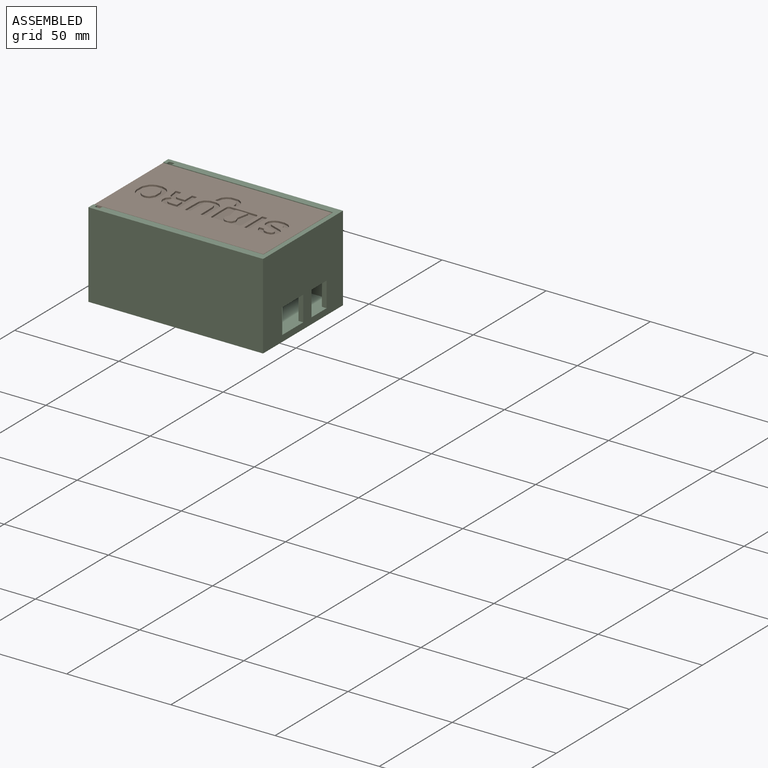
[diagram: assembled view]
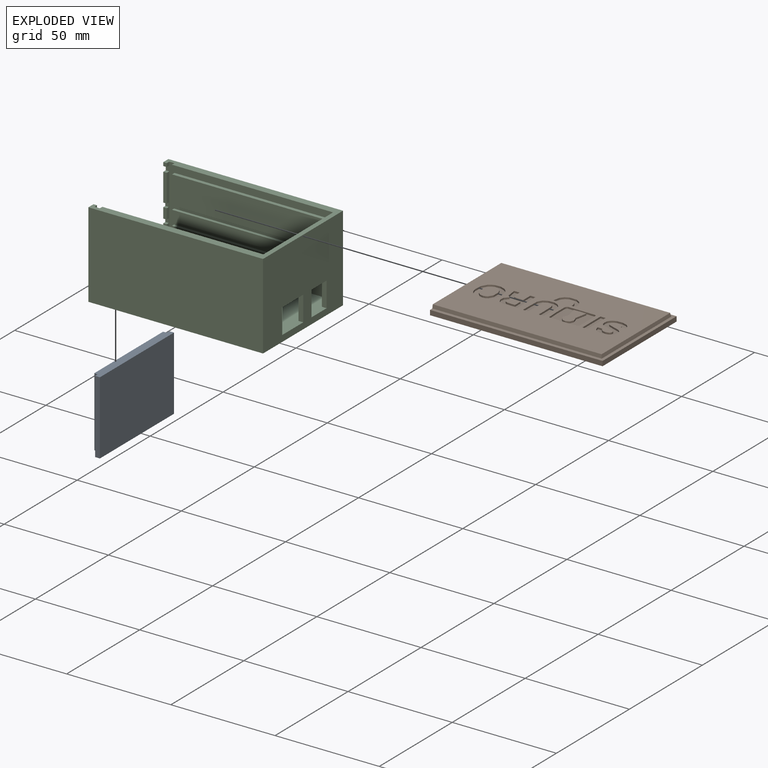
[diagram: exploded view]
GUIDED TOUR — MATED ASSEMBLY (Onshape document 5ca943f7dbe2b45de2e592c2, AutoMate assembly 5ca943f7dbe2b45de2e592c2_52b2e3cca65d3ede02709e09_ca88757c65d729c7c043e264_default)

This assembly has 3 components, labeled P0..P2 below (a component is one placed occurrence of a part; the same part can appear more than once), held together by 2 mates. A mate is a constraint between two components; its type names the relative motion it leaves free:
  SLIDER — leaves translation along the listed axis free.
Axis/direction vectors are unit vectors and 'through' points are millimeter coordinates, both in the assembly's world frame.

MATES
  1. SLIDER "Slider 2": P1 <-> P2, axis (1.000, 0.000, 0.000) through (76.69, -5.85, 149.50) mm
  2. SLIDER "Slider 1": P2 <-> P0, axis (0.000, 0.000, 1.000) through (-3.36, -5.85, 112.95) mm

ASSEMBLY ORDER
  1. P2 — the base component [order verified]
  2. P0 [order verified]
  3. P1 [order verified]
Order-tag legend:
  [order verified] — this step's position reverses a verified removal order: the component was checked to insert without passing through the ones already placed.

Of the 3 components, 1 carries the full construction recipe — the FeatureScript program that regenerates the part's solid from scratch; the rest are supplied as boundary geometry only.
Each toured component is shown spotlighted twice — in the assembled view, then in the exploded view, where a leader line traces a displaced component back to its assembled socket (saturated green if recipe-attached, orange if geometry-only; every other component desaturated gray) — followed by its recipe or geometry summary and the mates that hold it.
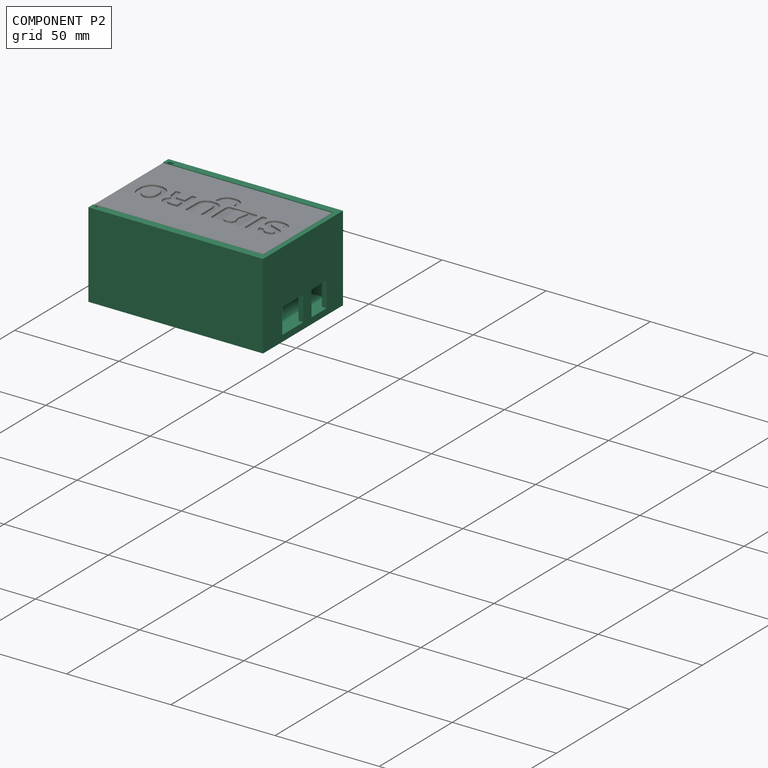
[diagram: component P2 — assembled]
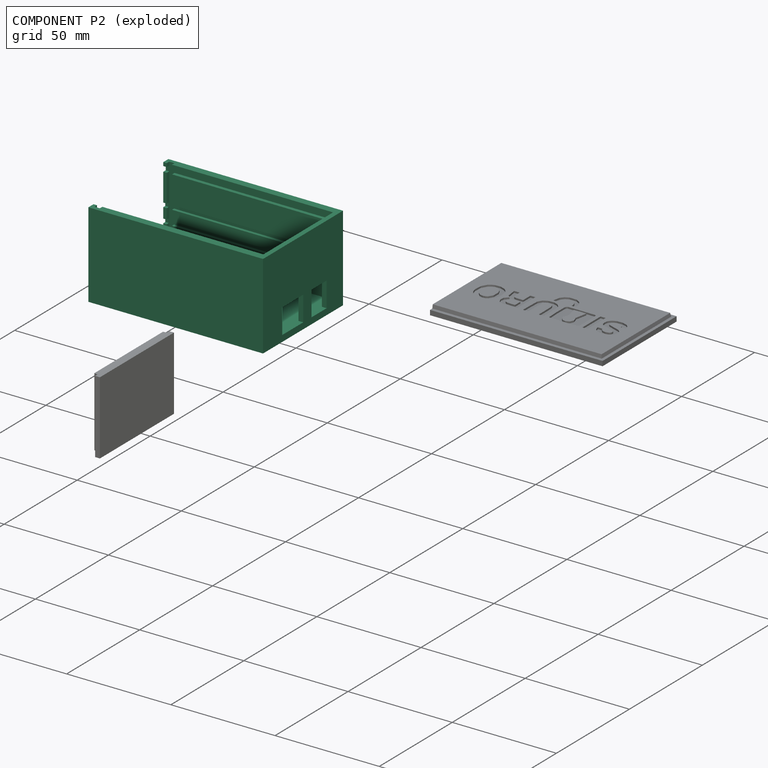
[diagram: component P2 — exploded]
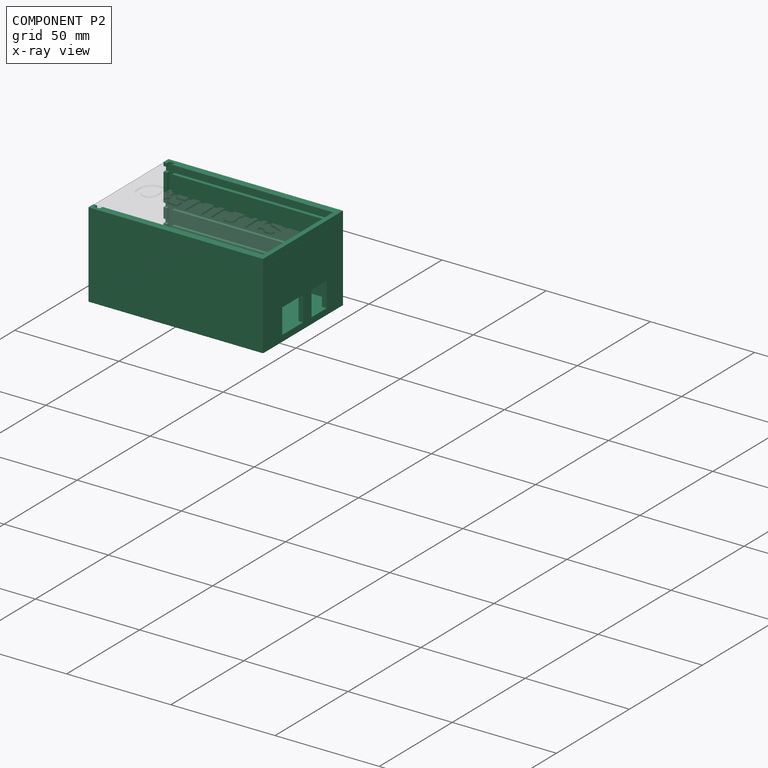
[diagram: component P2 — x-ray view]
COMPONENT P2 — recipe-attached (CADFS 00444527, mesh-verified: the recipe's output STEP matches this component's geometry to below the mesh-comparison resolution (tessellation chordal tolerance ~0.162 mm)).
Held by: SLIDER mate "Slider 2" to P1; SLIDER mate "Slider 1" to P0.
Construction recipe (FeatureScript — the CAD program that rebuilds this solid; sketch coordinates are in the units given by the * unit suffixes, e.g. mm):

FeatureScript 1511;
import(path : "onshape/std/geometry.fs", version : "1511.0");
import(path : "onshape/std/common.fs", version : "1511.0");
const mm = millimeter;
const VERTEX = EntityType.VERTEX;
const EDGE = EntityType.EDGE;
const FACE = EntityType.FACE;
const BODY = EntityType.BODY;
function v(x, y){return vector(x, y);}
function OD(order){return orderDisambiguation(order);}
function OSD(set){return originalSetDisambiguation(set);}
function TD(topology){return topologyDisambiguation(topology);}
function TDD(query){return trueDependencyDisambiguation(query);}
function sQuery(a, b, c) {return sketchEntityQuery(a, b, c);}

annotation { "Feature Type Name" : "Feature", "Feature Type Description" : "" }
export const myFeature = defineFeature(function(context is Context, id is Id, definition is map)
    precondition{}
    {
        {
            var Q0;
            Q0=qCreatedBy(makeId("Top.planeOp"),FACE);
            var sketch = newSketch(context, id + "F0", { "sketchPlane" : qUnion([Q0])});
            skLineSegment(sketch, "E0.bottom", {"start": v(37.5, 25) * mm, "end": v(-37.5, 25) * mm, "construction": true});
            skLineSegment(sketch, "E0.top", {"start": v(37.5, -25) * mm, "end": v(-37.5, -25) * mm, "construction": true});
            skLineSegment(sketch, "E0.left", {"start": v(37.5, 25) * mm, "end": v(37.5, -25) * mm, "construction": true});
            skLineSegment(sketch, "E0.right", {"start": v(-37.5, 25) * mm, "end": v(-37.5, -25) * mm, "construction": true});
            skPoint(sketch, "E0.middle", {"position": v(0, 0) * mm});
            skCircle(sketch, "E1", {"center": v(-34.5, 22) * mm, "radius": 1.25 * mm, "construction": true});
            skCircle(sketch, "E2", {"center": v(-34.5, -22) * mm, "radius": 1.25 * mm, "construction": true});
            skCircle(sketch, "E3", {"center": v(34.5, -22) * mm, "radius": 1.25 * mm, "construction": true});
            skCircle(sketch, "E4", {"center": v(34.5, 22) * mm, "radius": 1.25 * mm, "construction": true});
            skLineSegment(sketch, "E5", {"start": v(37.5, -13.77) * mm, "end": v(41.3, -13.77) * mm, "construction": true});
            skLineSegment(sketch, "E6.left", {"start": v(37.5, -13.77) * mm, "end": v(37.5, -13.77) * mm});
            skLineSegment(sketch, "E6.right", {"start": v(41.3, -13.77) * mm, "end": v(41.3, -13.77) * mm});
            skLineSegment(sketch, "E7.top", {"start": v(37.5, -0.36) * mm, "end": v(41.3, -0.36) * mm, "construction": true});
            skLineSegment(sketch, "E7.left", {"start": v(37.5, -13.77) * mm, "end": v(37.5, -0.36) * mm, "construction": true});
            skLineSegment(sketch, "E7.right", {"start": v(41.3, -13.77) * mm, "end": v(41.3, -0.36) * mm, "construction": true});
            skLineSegment(sketch, "E8.bottom", {"start": v(37.5, 6.5) * mm, "end": v(41.3, 6.5) * mm, "construction": true});
            skLineSegment(sketch, "E8.top", {"start": v(37.5, 15.5) * mm, "end": v(41.3, 15.5) * mm, "construction": true});
            skLineSegment(sketch, "E8.left", {"start": v(37.5, 6.5) * mm, "end": v(37.5, 15.5) * mm, "construction": true});
            skLineSegment(sketch, "E8.right", {"start": v(41.3, 6.5) * mm, "end": v(41.3, 15.5) * mm, "construction": true});
            skSolve(sketch);
        }
        {
            var Q0;
            Q0=qCreatedBy(makeId("Top.planeOp"),FACE);
            var sketch = newSketch(context, id + "F1", { "sketchPlane" : qUnion([Q0])});
            skLineSegment(sketch, "E9.bottom", {"start": v(-43, 23.9) * mm, "end": v(38.5, 23.9) * mm});
            skLineSegment(sketch, "E9.top", {"start": v(-43, -23.9) * mm, "end": v(38.5, -23.9) * mm});
            skLineSegment(sketch, "E9.left", {"start": v(-43, 23.9) * mm, "end": v(-43, -23.9) * mm});
            skLineSegment(sketch, "E9.right", {"start": v(38.5, 23.9) * mm, "end": v(38.5, -23.9) * mm});
            skLineSegment(sketch, "E10.bottom", {"start": v(-43, 27.4) * mm, "end": v(40.8, 27.4) * mm});
            skLineSegment(sketch, "E10.top", {"start": v(-43, -27.4) * mm, "end": v(40.8, -27.4) * mm});
            skLineSegment(sketch, "E10.left", {"start": v(-43, 27.4) * mm, "end": v(-43, -27.4) * mm});
            skLineSegment(sketch, "E10.right", {"start": v(40.8, 27.4) * mm, "end": v(40.8, -27.4) * mm});
            skLineSegment(sketch, "E11.bottom", {"start": v(-41.3, -23.9) * mm, "end": v(-38.8, -23.9) * mm});
            skLineSegment(sketch, "E11.top", {"start": v(-41.3, -25.6) * mm, "end": v(-38.8, -25.6) * mm});
            skLineSegment(sketch, "E11.left", {"start": v(-41.3, -23.9) * mm, "end": v(-41.3, -25.6) * mm});
            skLineSegment(sketch, "E11.right", {"start": v(-38.8, -23.9) * mm, "end": v(-38.8, -25.6) * mm});
            skLineSegment(sketch, "E12.bottom", {"start": v(-41.3, 23.9) * mm, "end": v(-38.8, 23.9) * mm});
            skLineSegment(sketch, "E12.top", {"start": v(-41.3, 25.6) * mm, "end": v(-38.8, 25.6) * mm});
            skLineSegment(sketch, "E12.left", {"start": v(-41.3, 23.9) * mm, "end": v(-41.3, 25.6) * mm});
            skLineSegment(sketch, "E12.right", {"start": v(-38.8, 23.9) * mm, "end": v(-38.8, 25.6) * mm});
            skLineSegment(sketch, "E13.left", {"start": v(-41.3, 23.9) * mm, "end": v(-41.3, -23.9) * mm});
            skLineSegment(sketch, "E13.right", {"start": v(-38.8, 23.9) * mm, "end": v(-38.8, -23.9) * mm});
            skSolve(sketch);
        }
        {
            var Q0;
            {var subQ6=sQuery(id+"F1.wireOp",EDGE,"E9.right");Q0=makeQuery(id+"F1.imprint","IMPRINT",FACE,{"disambiguationData":[TD([[makeQuery(id+"F1.imprint","IMPRINT",EDGE,{"derivedFrom":subQ6}),1.0]])]});}
            extrude(context, id + "F2", {"entities" : qUnion([Q0]), "depth" : 41 * mm});
        }
        {
            var Q0;
            {var subQ2=sQuery(id+"F1.wireOp",EDGE,"E9.right");Q0=makeQuery(id+"F1.imprint","IMPRINT",FACE,{"disambiguationData":[TD([[makeQuery(id+"F1.imprint","IMPRINT",EDGE,{"derivedFrom":subQ2}),-1.0]])]});}
            var Q1;
            Q1=makeQuery(id+"F1.imprint","IMPRINT",FACE,{"disambiguationData":[TD([[makeQuery(id+"F1.imprint","IMPRINT",EDGE,{"derivedFrom":sQuery(id+"F1.wireOp",EDGE,"E12.bottom")}),1.0]])]});
            var Q2;
            Q2=makeQuery(id+"F1.imprint","IMPRINT",FACE,{"disambiguationData":[TD([[makeQuery(id+"F1.imprint","IMPRINT",EDGE,{"derivedFrom":sQuery(id+"F1.wireOp",EDGE,"E11.bottom")}),-1.0]])]});
            var Q3;
            {var subQ3=sQuery(id+"F1.wireOp",EDGE,"E9.left");Q3=makeQuery(id+"F1.imprint","IMPRINT",FACE,{"disambiguationData":[TD([[makeQuery(id+"F1.imprint","IMPRINT",EDGE,{"derivedFrom":subQ3}),1.0]])]});}
            extrude(context, id + "F3", {"entities" : qUnion([Q0, Q1, Q2, Q3]), "operationType" : NewBodyOperationType.ADD, "depth" : 3 * mm});
        }
        {
            var Q0;
            Q0=makeQuery(id+"F1.imprint","IMPRINT",FACE,{"disambiguationData":[TD([[makeQuery(id+"F1.imprint","IMPRINT",EDGE,{"derivedFrom":sQuery(id+"F1.wireOp",EDGE,"E11.top")}),1.0]])]});
            var Q1;
            {var subQ2=sQuery(id+"F1.wireOp",EDGE,"E13.left");Q1=makeQuery(id+"F1.imprint","IMPRINT",FACE,{"disambiguationData":[TD([[makeQuery(id+"F1.imprint","IMPRINT",EDGE,{"derivedFrom":subQ2}),1.0]])]});}
            var Q2;
            Q2=makeQuery(id+"F1.imprint","IMPRINT",FACE,{"disambiguationData":[TD([[makeQuery(id+"F1.imprint","IMPRINT",EDGE,{"derivedFrom":sQuery(id+"F1.wireOp",EDGE,"E12.top")}),-1.0]])]});
            extrude(context, id + "F4", {"entities" : qUnion([Q0, Q1, Q2]), "operationType" : NewBodyOperationType.ADD, "depth" : 1.5 * mm});
        }
        {
            var Q0;
            Q0=makeQuery(id+"F2.opExtrude","SWEPT_FACE",FACE,{"disambiguationData":[OSD([sQuery(id+"F1.wireOp",EDGE,"E10.right")])]});
            var sketch = newSketch(context, id + "F5", { "sketchPlane" : qUnion([Q0])});
            skPoint(sketch, "E14.0", {"position": v(-13.77, 0) * mm});
            skPoint(sketch, "E15.0", {"position": v(-0.36, 0) * mm});
            skPoint(sketch, "E16.0", {"position": v(6.5, 0) * mm});
            skPoint(sketch, "E17.0", {"position": v(15.5, 0) * mm});
            skLineSegment(sketch, "E18.bottom", {"start": v(-0.36, 0) * mm, "end": v(-13.77, 0) * mm, "construction": true});
            skLineSegment(sketch, "E18.top", {"start": v(-0.36, 14) * mm, "end": v(-13.77, 14) * mm, "construction": true});
            skLineSegment(sketch, "E18.left", {"start": v(-0.36, 0) * mm, "end": v(-0.36, 14) * mm, "construction": true});
            skLineSegment(sketch, "E18.right", {"start": v(-13.77, 0) * mm, "end": v(-13.77, 14) * mm, "construction": true});
            skLineSegment(sketch, "E19.bottom", {"start": v(6.5, 0) * mm, "end": v(15.5, 0) * mm, "construction": true});
            skLineSegment(sketch, "E19.top", {"start": v(6.5, 14) * mm, "end": v(15.5, 14) * mm, "construction": true});
            skLineSegment(sketch, "E19.left", {"start": v(6.5, 0) * mm, "end": v(6.5, 14) * mm, "construction": true});
            skLineSegment(sketch, "E19.right", {"start": v(15.5, 0) * mm, "end": v(15.5, 14) * mm, "construction": true});
            skLineSegment(sketch, "E20.bottom", {"start": v(-14.27, 0) * mm, "end": v(0.14, 0) * mm});
            skLineSegment(sketch, "E20.top", {"start": v(-14.27, 15) * mm, "end": v(0.14, 15) * mm});
            skLineSegment(sketch, "E20.left", {"start": v(-14.27, 0) * mm, "end": v(-14.27, 15) * mm});
            skLineSegment(sketch, "E20.right", {"start": v(0.14, 0) * mm, "end": v(0.14, 15) * mm});
            skLineSegment(sketch, "E21.bottom", {"start": v(5.8, 0) * mm, "end": v(16.2, 0) * mm});
            skLineSegment(sketch, "E21.top", {"start": v(5.8, 15) * mm, "end": v(16.2, 15) * mm});
            skLineSegment(sketch, "E21.left", {"start": v(5.8, 0) * mm, "end": v(5.8, 15) * mm});
            skLineSegment(sketch, "E21.right", {"start": v(16.2, 0) * mm, "end": v(16.2, 15) * mm});
            skLineSegment(sketch, "E22.top", {"start": v(-14.27, 3) * mm, "end": v(0.14, 3) * mm});
            skLineSegment(sketch, "E22.left", {"start": v(-14.27, 0) * mm, "end": v(-14.27, 3) * mm});
            skLineSegment(sketch, "E22.right", {"start": v(0.14, 0) * mm, "end": v(0.14, 3) * mm});
            skLineSegment(sketch, "E23.top", {"start": v(5.8, 3) * mm, "end": v(16.2, 3) * mm});
            skLineSegment(sketch, "E23.left", {"start": v(5.8, 0) * mm, "end": v(5.8, 3) * mm});
            skLineSegment(sketch, "E23.right", {"start": v(16.2, 0) * mm, "end": v(16.2, 3) * mm});
            skSolve(sketch);
        }
        {
            var Q0;
            Q0=makeQuery(id+"F5.imprint","IMPRINT",FACE,{"disambiguationData":[TD([[makeQuery(id+"F5.imprint","IMPRINT",EDGE,{"derivedFrom":sQuery(id+"F5.wireOp",EDGE,"E20.top")}),-1.0]])]});
            var Q1;
            Q1=makeQuery(id+"F5.imprint","IMPRINT",FACE,{"disambiguationData":[TD([[makeQuery(id+"F5.imprint","IMPRINT",EDGE,{"derivedFrom":sQuery(id+"F5.wireOp",EDGE,"E21.top")}),-1.0]])]});
            extrude(context, id + "F6", {"entities" : qUnion([Q0, Q1]), "operationType" : NewBodyOperationType.REMOVE, "oppositeDirection" : true, "depth" : 3 * mm});
        }
        {
            var Q0;
            {var subQ0=sQuery(id+"F1.wireOp",EDGE,"E9.left");var subQ1=sQuery(id+"F1.wireOp",EDGE,"E10.left");Q0=makeQuery(id+"F3.boolean.opBoolean","MERGE",FACE,{"derivedFrom":[makeQuery(id+"F2.opExtrude","SWEPT_FACE",FACE,{"disambiguationData":[OSD([subQ1]),TDD([makeQuery(id+"F1.imprint","IMPRINT",EDGE,{"disambiguationData":[TD([[makeQuery(id+"F1.imprint","INTERSECT",VERTEX,{"derivedFrom":[sQuery(id+"F1.wireOp",EDGE,"E10.top"),subQ1]}),1.0]])],"derivedFrom":subQ1})])]}),makeQuery(id+"F2.opExtrude","SWEPT_FACE",FACE,{"disambiguationData":[OSD([subQ1]),TDD([makeQuery(id+"F1.imprint","IMPRINT",EDGE,{"disambiguationData":[TD([[makeQuery(id+"F1.imprint","INTERSECT",VERTEX,{"derivedFrom":[sQuery(id+"F1.wireOp",EDGE,"E10.bottom"),subQ1]}),-1.0]])],"derivedFrom":subQ1})])]}),makeQuery(id+"F3.opExtrude","SWEPT_FACE",FACE,{"disambiguationData":[OSD([subQ0])]})]});}
            var sketch = newSketch(context, id + "F7", { "sketchPlane" : qUnion([Q0])});
            skLineSegment(sketch, "E24.bottom", {"start": v(-23.9, 16.5) * mm, "end": v(-25.3, 16.5) * mm});
            skLineSegment(sketch, "E24.top", {"start": v(-23.9, 14.5) * mm, "end": v(-25.3, 14.5) * mm});
            skLineSegment(sketch, "E24.left", {"start": v(-23.9, 16.5) * mm, "end": v(-23.9, 14.5) * mm});
            skLineSegment(sketch, "E24.right", {"start": v(-25.3, 16.5) * mm, "end": v(-25.3, 14.5) * mm});
            skLineSegment(sketch, "E25.bottom", {"start": v(23.9, 14.5) * mm, "end": v(25.3, 14.5) * mm});
            skLineSegment(sketch, "E25.top", {"start": v(23.9, 16.5) * mm, "end": v(25.3, 16.5) * mm});
            skLineSegment(sketch, "E25.left", {"start": v(23.9, 14.5) * mm, "end": v(23.9, 16.5) * mm});
            skLineSegment(sketch, "E25.right", {"start": v(25.3, 14.5) * mm, "end": v(25.3, 16.5) * mm});
            skLineSegment(sketch, "E26.bottom", {"start": v(-23.9, 21.45) * mm, "end": v(-25.3, 21.45) * mm});
            skLineSegment(sketch, "E26.top", {"start": v(-23.9, 23.45) * mm, "end": v(-25.3, 23.45) * mm});
            skLineSegment(sketch, "E26.left", {"start": v(-23.9, 21.45) * mm, "end": v(-23.9, 23.45) * mm});
            skLineSegment(sketch, "E26.right", {"start": v(-25.3, 21.45) * mm, "end": v(-25.3, 23.45) * mm});
            skLineSegment(sketch, "E27.bottom", {"start": v(23.9, 21.45) * mm, "end": v(25.3, 21.45) * mm});
            skLineSegment(sketch, "E27.top", {"start": v(23.9, 23.45) * mm, "end": v(25.3, 23.45) * mm});
            skLineSegment(sketch, "E27.left", {"start": v(23.9, 21.45) * mm, "end": v(23.9, 23.45) * mm});
            skLineSegment(sketch, "E27.right", {"start": v(25.3, 21.45) * mm, "end": v(25.3, 23.45) * mm});
            skSolve(sketch);
        }
        {
            var Q0;
            Q0=makeQuery(id+"F7.imprint","IMPRINT",FACE,{"disambiguationData":[TD([[makeQuery(id+"F7.imprint","IMPRINT",EDGE,{"derivedFrom":sQuery(id+"F7.wireOp",EDGE,"E24.bottom")}),1.0]])]});
            var Q1;
            Q1=makeQuery(id+"F7.imprint","IMPRINT",FACE,{"disambiguationData":[TD([[makeQuery(id+"F7.imprint","IMPRINT",EDGE,{"derivedFrom":sQuery(id+"F7.wireOp",EDGE,"E26.bottom")}),-1.0]])]});
            var Q2;
            Q2=makeQuery(id+"F7.imprint","IMPRINT",FACE,{"disambiguationData":[TD([[makeQuery(id+"F7.imprint","IMPRINT",EDGE,{"derivedFrom":sQuery(id+"F7.wireOp",EDGE,"E25.bottom")}),1.0]])]});
            var Q3;
            Q3=makeQuery(id+"F7.imprint","IMPRINT",FACE,{"disambiguationData":[TD([[makeQuery(id+"F7.imprint","IMPRINT",EDGE,{"derivedFrom":sQuery(id+"F7.wireOp",EDGE,"E27.bottom")}),1.0]])]});
            extrude(context, id + "F8", {"entities" : qUnion([Q0, Q1, Q2, Q3]), "operationType" : NewBodyOperationType.REMOVE, "oppositeDirection" : true, "depth" : 81 * mm});
        }
        {
            var Q0;
            {var subQ0=sQuery(id+"F1.wireOp",EDGE,"E9.left");var subQ1=sQuery(id+"F1.wireOp",EDGE,"E10.left");Q0=makeQuery(id+"F3.boolean.opBoolean","MERGE",FACE,{"derivedFrom":[makeQuery(id+"F2.opExtrude","SWEPT_FACE",FACE,{"disambiguationData":[OSD([subQ1]),TDD([makeQuery(id+"F1.imprint","IMPRINT",EDGE,{"disambiguationData":[TD([[makeQuery(id+"F1.imprint","INTERSECT",VERTEX,{"derivedFrom":[sQuery(id+"F1.wireOp",EDGE,"E10.top"),subQ1]}),1.0]])],"derivedFrom":subQ1})])]}),makeQuery(id+"F2.opExtrude","SWEPT_FACE",FACE,{"disambiguationData":[OSD([subQ1]),TDD([makeQuery(id+"F1.imprint","IMPRINT",EDGE,{"disambiguationData":[TD([[makeQuery(id+"F1.imprint","INTERSECT",VERTEX,{"derivedFrom":[sQuery(id+"F1.wireOp",EDGE,"E10.bottom"),subQ1]}),-1.0]])],"derivedFrom":subQ1})])]}),makeQuery(id+"F3.opExtrude","SWEPT_FACE",FACE,{"disambiguationData":[OSD([subQ0])]})]});}
            var sketch = newSketch(context, id + "F9", { "sketchPlane" : qUnion([Q0])});
            skLineSegment(sketch, "E28.bottom", {"start": v(-23.9, 39.3) * mm, "end": v(-25.6, 39.3) * mm});
            skLineSegment(sketch, "E28.top", {"start": v(-23.9, 36.8) * mm, "end": v(-25.6, 36.8) * mm});
            skLineSegment(sketch, "E28.left", {"start": v(-23.9, 39.3) * mm, "end": v(-23.9, 36.8) * mm});
            skLineSegment(sketch, "E28.right", {"start": v(-25.6, 39.3) * mm, "end": v(-25.6, 36.8) * mm});
            skLineSegment(sketch, "E29.bottom", {"start": v(23.9, 39.3) * mm, "end": v(25.6, 39.3) * mm});
            skLineSegment(sketch, "E29.top", {"start": v(23.9, 36.8) * mm, "end": v(25.6, 36.8) * mm});
            skLineSegment(sketch, "E29.left", {"start": v(23.9, 39.3) * mm, "end": v(23.9, 36.8) * mm});
            skLineSegment(sketch, "E29.right", {"start": v(25.6, 39.3) * mm, "end": v(25.6, 36.8) * mm});
            skSolve(sketch);
        }
        {
            var Q0;
            Q0=makeQuery(id+"F9.imprint","IMPRINT",FACE,{"disambiguationData":[TD([[makeQuery(id+"F9.imprint","IMPRINT",EDGE,{"derivedFrom":sQuery(id+"F9.wireOp",EDGE,"E28.bottom")}),1.0]])]});
            var Q1;
            Q1=makeQuery(id+"F9.imprint","IMPRINT",FACE,{"disambiguationData":[TD([[makeQuery(id+"F9.imprint","IMPRINT",EDGE,{"derivedFrom":sQuery(id+"F9.wireOp",EDGE,"E29.bottom")}),-1.0]])]});
            extrude(context, id + "F10", {"entities" : qUnion([Q0, Q1]), "operationType" : NewBodyOperationType.REMOVE, "oppositeDirection" : true, "depth" : 83 * mm});
        }
        {
            var Q0;
            Q0=makeQuery(id+"F2.opExtrude","SWEPT_FACE",FACE,{"disambiguationData":[OSD([sQuery(id+"F1.wireOp",EDGE,"E9.right")])]});
            var sketch = newSketch(context, id + "F11", { "sketchPlane" : qUnion([Q0])});
            skLineSegment(sketch, "E30.bottom", {"start": v(-23.9, 39.3) * mm, "end": v(23.9, 39.3) * mm});
            skLineSegment(sketch, "E30.top", {"start": v(-23.9, 36.8) * mm, "end": v(23.9, 36.8) * mm});
            skLineSegment(sketch, "E30.left", {"start": v(-23.9, 39.3) * mm, "end": v(-23.9, 36.8) * mm});
            skLineSegment(sketch, "E30.right", {"start": v(23.9, 39.3) * mm, "end": v(23.9, 36.8) * mm});
            skSolve(sketch);
        }
        {
            var Q0;
            Q0=makeQuery(id+"F11.imprint","IMPRINT",FACE,{"disambiguationData":[TD([[makeQuery(id+"F11.imprint","IMPRINT",EDGE,{"derivedFrom":sQuery(id+"F11.wireOp",EDGE,"E30.bottom")}),-1.0]])]});
            extrude(context, id + "F12", {"entities" : qUnion([Q0]), "operationType" : NewBodyOperationType.REMOVE, "oppositeDirection" : true, "depth" : 1.5 * mm});
        }
    });
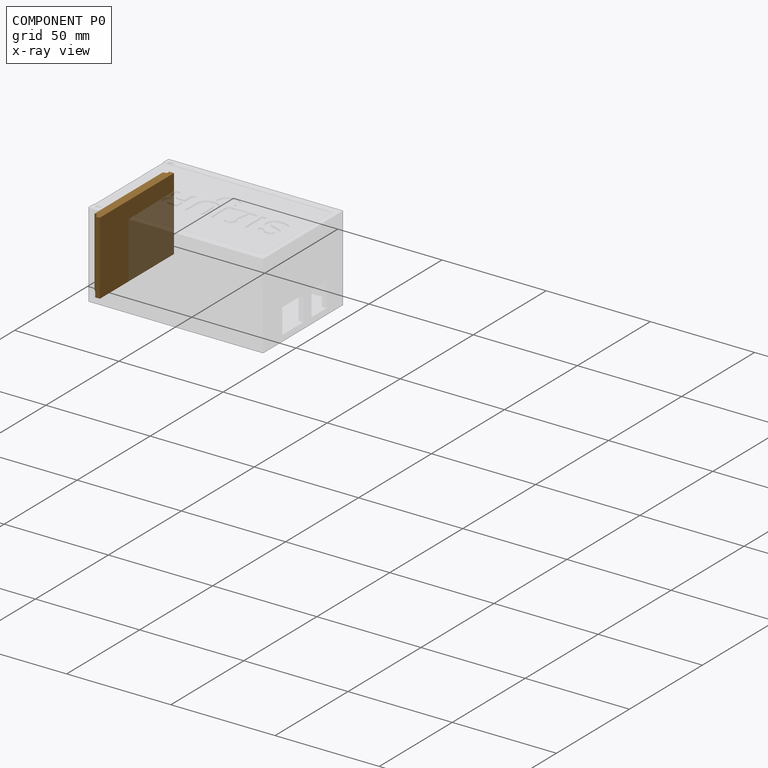
[diagram: component P0 — x-ray view]
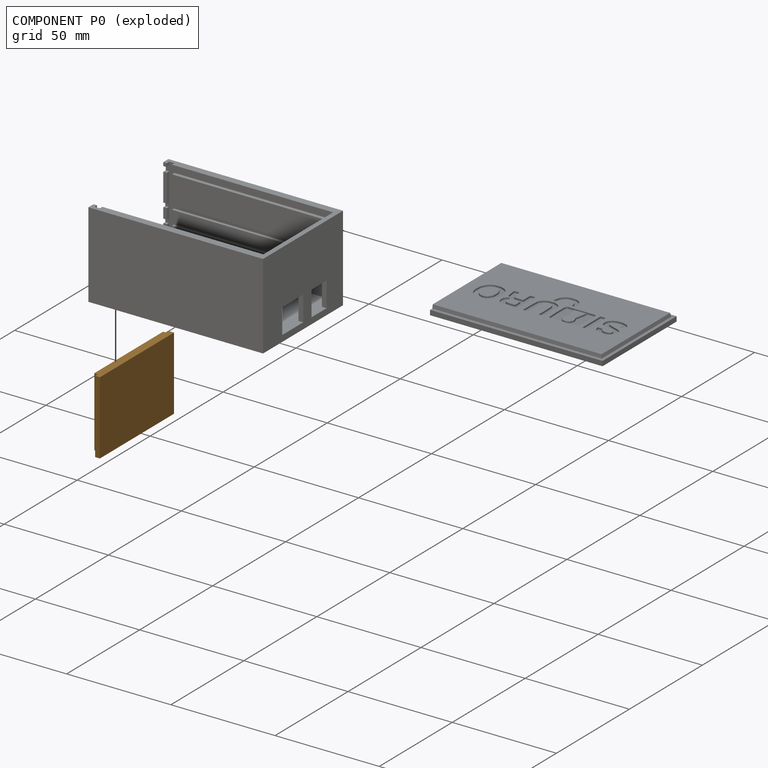
[diagram: component P0 — exploded]
COMPONENT P0 — geometry summary (no construction recipe available for this part):
  bounding box: 50.8 x 35.2 x 4.0 mm
  B-rep topology: 1 solid, 52 faces, 276 edges
  volume: 6775 mm^3 (95% of its bounding box)
Held by: SLIDER mate "Slider 1" to P2.
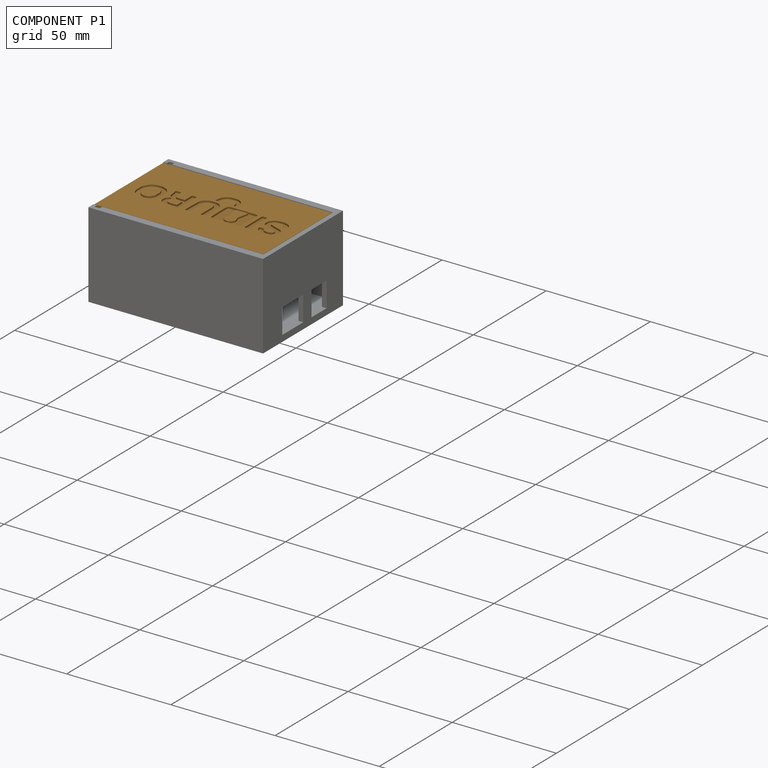
[diagram: component P1 — assembled]
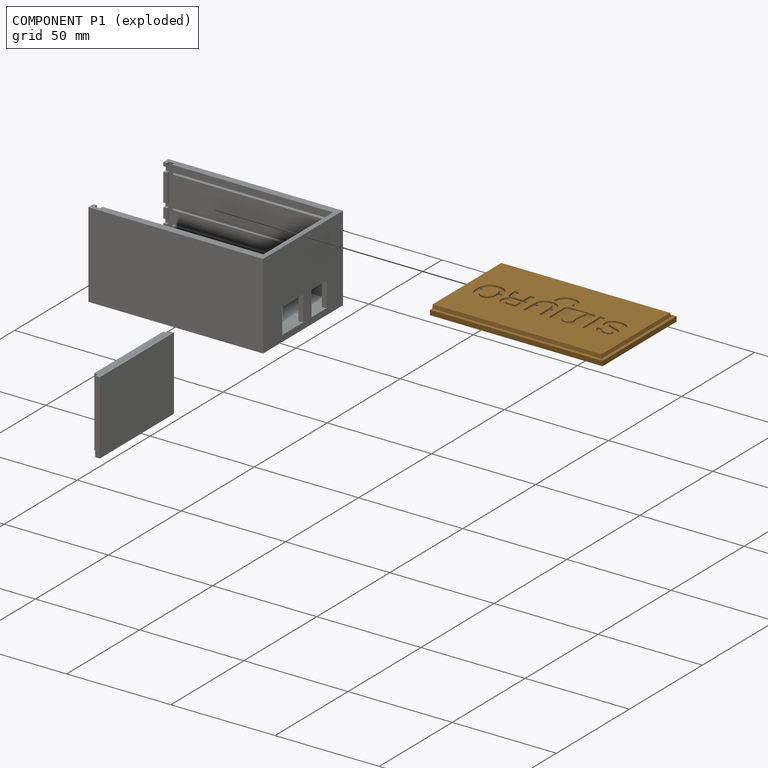
[diagram: component P1 — exploded]
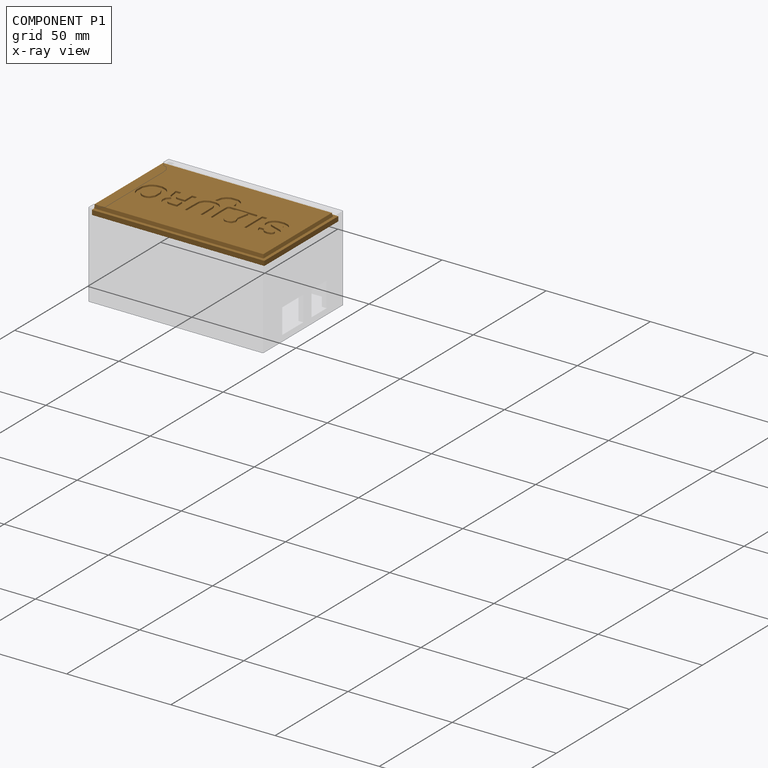
[diagram: component P1 — x-ray view]
COMPONENT P1 — geometry summary (no construction recipe available for this part):
  bounding box: 82.8 x 50.8 x 4.0 mm
  B-rep topology: 1 solid, 210 faces, 1188 edges
  volume: 15821 mm^3 (94% of its bounding box)
Held by: SLIDER mate "Slider 2" to P2.
PROVENANCE & LICENSES
Assembly (occurrences, transforms, mates, per-part STEP geometry): AutoMate dataset, Zenodo record 7776208, CC0.
Construction recipes: CADFS (HuggingFace VladPyatov/CADFS, CC-BY-4.0, layered over the ABC dataset), FeatureScript reconstruction programs keyed by ABC model id.
Join: ABC meta listings map ABC model id -> Onshape documentId; within a shared document, parts are matched by geometric signature (bounding-box dims + volume at 0.1% relative tolerance, exact B-rep face/solid counts).
Verification: 1 of this assembly's 3 components carries a recipe attachment, and every attachment is mesh-verified: the CADFS STEP and the AutoMate member STEP were compared as meshes in their shared local frame (symmetric sampled-point-to-mesh distance); worst across the 1 attachment: below the mesh-comparison resolution (tessellation chordal tolerance ~0.162 mm) on a 108 mm part.
Renders: orthographic iso camera (az 35 / el 25); the floor grid conveys scale (grid pitch printed in each image; no ruler). In the exploded view each component is displaced by its stored offset vector: the offsets alone carry the explosion direction (mate normal/axis signs are not orientation cues and do not encode it), and separation distances are assigned per mate-chain, not proportionally to assembly-order depth.
